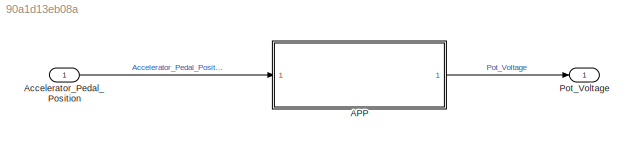
MODEL slx_90a1d13eb08a
KIND model
CONFIG AbsTol = auto
CONFIG EnableMultiTasking = off
CONFIG FixedStep = auto
CONFIG MaxStep = auto
CONFIG MinStep = auto
CONFIG RelTol = 1e-3
CONFIG SampleTimeConstraint = Unconstrained
CONFIG SolverName = FixedStepAuto
CONFIG StartTime = 0.0
CONFIG StopTime = 10
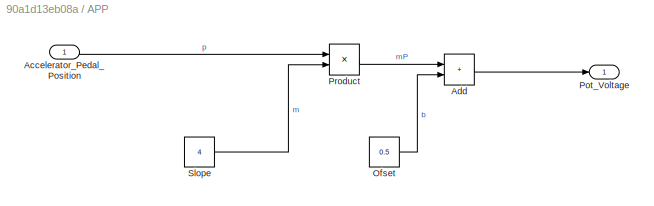
BLOCK [SubSystem] APP
  Ports = [1, 1]
  RequestExecContextInheritance = off
BLOCK [Inport] APP/Accelerator_Pedal_Position
BLOCK [Sum] APP/Add
  IconShape = rectangular
  Ports = [2, 1]
BLOCK [Constant] APP/Ofset
  Value = 0.5
BLOCK [Outport] APP/Pot_Voltage
BLOCK [Product] APP/Product
  Ports = [2, 1]
BLOCK [Constant] APP/Slope
  Value = 4
BLOCK [Inport] Accelerator_Pedal_Position
BLOCK [Outport] Pot_Voltage
LINE APP/Accelerator_Pedal_Position:1 -> APP/Product:1
LINE APP/Add:1 -> APP/Pot_Voltage:1
LINE APP/Ofset:1 -> APP/Add:2
LINE APP/Product:1 -> APP/Add:1
LINE APP/Slope:1 -> APP/Product:2
LINE APP:1 -> Pot_Voltage:1
LINE Accelerator_Pedal_Position:1 -> APP:1
